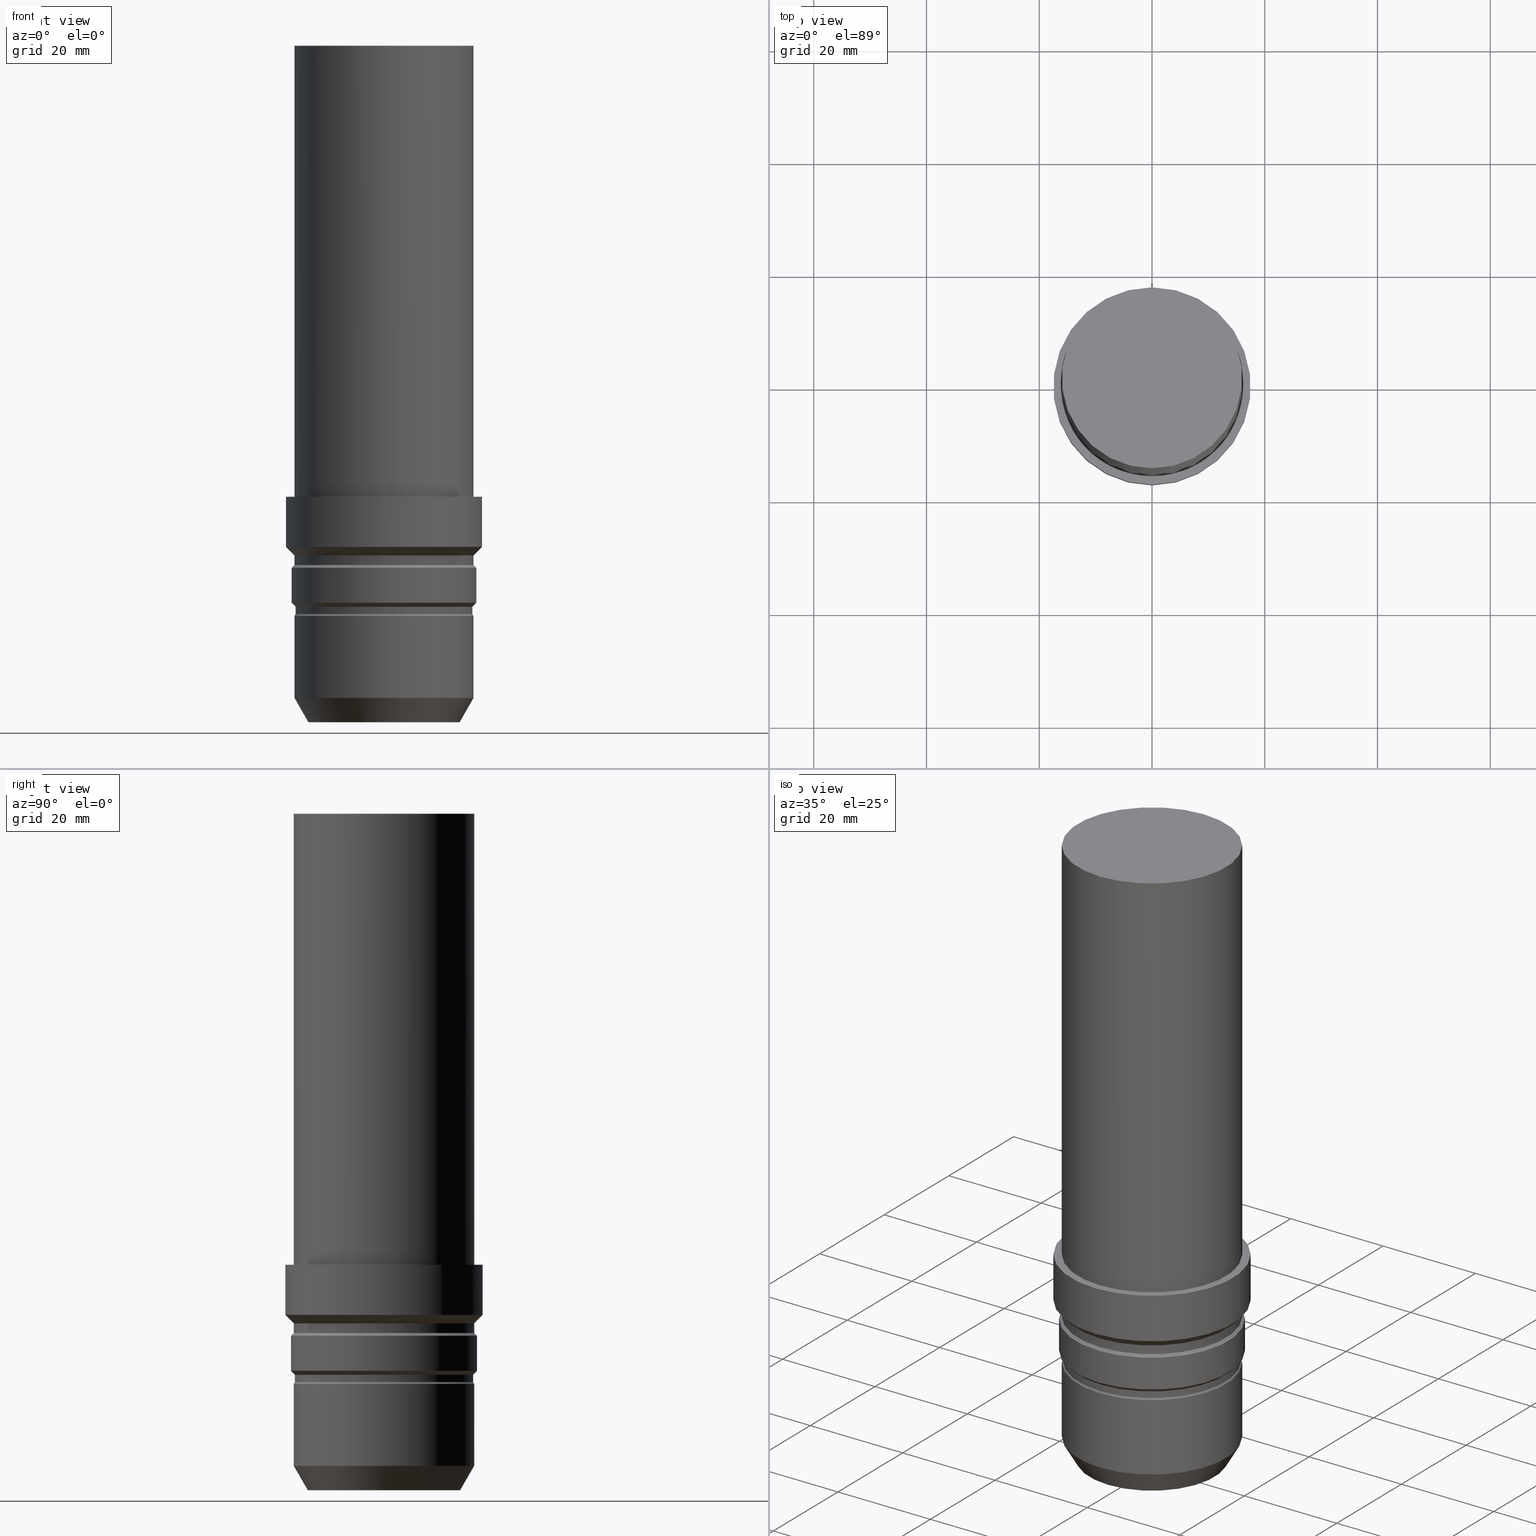
[diagram: canonical four-view strip — front | top / right | iso, engineering-drawing reading convention]
A machine part, canonical four-view strip (front | top / right | iso — engineering-drawing reading convention). The complete STEP part file that produces these views, byte-faithful:
ISO-10303-21;
HEADER;
FILE_DESCRIPTION((''),'1');
FILE_NAME('U:/Translate/00_BIG-HP\X2\FF71FF6FFF8CFF9F\X0\2013/\X2\30C030A630F330ED30FC30C930C730FC30BF\X0\/Vol9\X2\4EE5964D63B28F094E885B9A\X0\/STEP_\X2\FF82FF70FF98FF9DFF78FF9E7DE8\X0\Vol9-1\X2\4EE5964D63B28F094E885B9A\X0\/ST32-HMC12J-120.stp','2014-12-22T03:52:39',(''),(''),'Spatial Interop R21 SP3','Kubotek KeyCreator 2011 V10.0.2 (22737)',' ');
FILE_SCHEMA(('automotive_design'));
ENDSEC;
DATA;
#1=MECHANICAL_DESIGN_GEOMETRIC_PRESENTATION_REPRESENTATION(' ',(#10,#11,#12,#13,#14,#15,#16,#17,#18,#19,#20,#21,#22,#23,#24,#25,#26,#27,#28,#29,#30,#31,#32,#33,#34,#35,#36,#37),#6);
#2=PRODUCT_DEFINITION_CONTEXT('',#38,'design');
#3=APPLICATION_PROTOCOL_DEFINITION('INTERNATIONAL STANDARD','automotive_design',1994,#38);
#4=PRODUCT_CATEGORY_RELATIONSHIP('NONE','NONE',#39,#40);
#5=SHAPE_DEFINITION_REPRESENTATION(#41,#42);
#6= (GEOMETRIC_REPRESENTATION_CONTEXT(3)GLOBAL_UNCERTAINTY_ASSIGNED_CONTEXT((#45))GLOBAL_UNIT_ASSIGNED_CONTEXT((#47,#48,#49))REPRESENTATION_CONTEXT('NONE','WORKSPACE'));
#10=STYLED_ITEM('',(#51),#52);
#11=STYLED_ITEM('',(#53,#54),#55);
#12=STYLED_ITEM('',(#56),#57);
#13=STYLED_ITEM('',(#58,#59),#60);
#14=STYLED_ITEM('',(#61,#62),#63);
#15=STYLED_ITEM('',(#64),#65);
#16=STYLED_ITEM('',(#66,#67),#68);
#17=STYLED_ITEM('',(#69,#70),#71);
#18=STYLED_ITEM('',(#72,#73),#74);
#19=STYLED_ITEM('',(#75),#76);
#20=STYLED_ITEM('',(#77),#78);
#21=STYLED_ITEM('',(#79),#80);
#22=STYLED_ITEM('',(#81),#82);
#23=STYLED_ITEM('',(#83,#84),#85);
#24=STYLED_ITEM('',(#86),#87);
#25=STYLED_ITEM('',(#88,#89),#90);
#26=STYLED_ITEM('',(#91),#92);
#27=STYLED_ITEM('',(#93,#94),#95);
#28=STYLED_ITEM('',(#96,#97),#98);
#29=STYLED_ITEM('',(#99),#100);
#30=STYLED_ITEM('',(#101,#102),#103);
#31=STYLED_ITEM('',(#104,#105),#106);
#32=STYLED_ITEM('',(#107,#108),#109);
#33=STYLED_ITEM('',(#110),#111);
#34=STYLED_ITEM('',(#112,#113),#114);
#35=STYLED_ITEM('',(#115),#116);
#36=STYLED_ITEM('',(#117),#118);
#37=STYLED_ITEM('',(#119,#120),#121);
#38=APPLICATION_CONTEXT(' ');
#39=PRODUCT_CATEGORY('part','NONE');
#40=PRODUCT_RELATED_PRODUCT_CATEGORY('detail',' ',(#122));
#41=PRODUCT_DEFINITION_SHAPE('NONE','NONE',#123);
#42=ADVANCED_BREP_SHAPE_REPRESENTATION('Unnamed[1]',(#63,#124),#6);
#45=UNCERTAINTY_MEASURE_WITH_UNIT(LENGTH_MEASURE(1.0E-006),#47,'','');
#47= (CONVERSION_BASED_UNIT('MILLIMETRE',#127)LENGTH_UNIT()NAMED_UNIT(#130));
#48= (NAMED_UNIT(#132)PLANE_ANGLE_UNIT()SI_UNIT($,.RADIAN.));
#49= (NAMED_UNIT(#132)SOLID_ANGLE_UNIT()SI_UNIT($,.STERADIAN.));
#51=PRESENTATION_STYLE_ASSIGNMENT((#138));
#52=EDGE_CURVE('Unnamed[1]',#139,#139,#140,.T.);
#53=PRESENTATION_STYLE_ASSIGNMENT((#141));
#54=PRESENTATION_STYLE_ASSIGNMENT((#142));
#55=ADVANCED_FACE('Unnamed[1]',(#143,#144),#145,.T.);
#56=PRESENTATION_STYLE_ASSIGNMENT((#146));
#57=EDGE_CURVE('Unnamed[1]',#147,#147,#148,.T.);
#58=PRESENTATION_STYLE_ASSIGNMENT((#149));
#59=PRESENTATION_STYLE_ASSIGNMENT((#150));
#60=ADVANCED_FACE('Unnamed[1]',(#151,#152),#153,.T.);
#61=PRESENTATION_STYLE_ASSIGNMENT((#154));
#62=PRESENTATION_STYLE_ASSIGNMENT((#155));
#63=MANIFOLD_SOLID_BREP('Unnamed[1]',#156);
#64=PRESENTATION_STYLE_ASSIGNMENT((#157));
#65=EDGE_CURVE('Unnamed[1]',#158,#158,#159,.T.);
#66=PRESENTATION_STYLE_ASSIGNMENT((#160));
#67=PRESENTATION_STYLE_ASSIGNMENT((#161));
#68=ADVANCED_FACE('Unnamed[1]',(#162,#163),#164,.T.);
#69=PRESENTATION_STYLE_ASSIGNMENT((#165));
#70=PRESENTATION_STYLE_ASSIGNMENT((#166));
#71=ADVANCED_FACE('Unnamed[1]',(#167,#168),#169,.T.);
#72=PRESENTATION_STYLE_ASSIGNMENT((#170));
#73=PRESENTATION_STYLE_ASSIGNMENT((#171));
#74=ADVANCED_FACE('Unnamed[1]',(#172,#173),#174,.T.);
#75=PRESENTATION_STYLE_ASSIGNMENT((#175));
#76=EDGE_CURVE('Unnamed[1]',#176,#176,#177,.T.);
#77=PRESENTATION_STYLE_ASSIGNMENT((#178));
#78=EDGE_CURVE('Unnamed[1]',#179,#179,#180,.T.);
#79=PRESENTATION_STYLE_ASSIGNMENT((#181));
#80=EDGE_CURVE('Unnamed[1]',#182,#182,#183,.T.);
#81=PRESENTATION_STYLE_ASSIGNMENT((#184));
#82=EDGE_CURVE('Unnamed[1]',#185,#185,#186,.T.);
#83=PRESENTATION_STYLE_ASSIGNMENT((#187));
#84=PRESENTATION_STYLE_ASSIGNMENT((#188));
#85=ADVANCED_FACE('Unnamed[1]',(#189,#190),#191,.T.);
#86=PRESENTATION_STYLE_ASSIGNMENT((#192));
#87=EDGE_CURVE('Unnamed[1]',#193,#193,#194,.T.);
#88=PRESENTATION_STYLE_ASSIGNMENT((#195));
#89=PRESENTATION_STYLE_ASSIGNMENT((#196));
#90=ADVANCED_FACE('Unnamed[1]',(#197,#198),#199,.T.);
#91=PRESENTATION_STYLE_ASSIGNMENT((#200));
#92=EDGE_CURVE('Unnamed[1]',#201,#201,#202,.T.);
#93=PRESENTATION_STYLE_ASSIGNMENT((#203));
#94=PRESENTATION_STYLE_ASSIGNMENT((#204));
#95=ADVANCED_FACE('Unnamed[1]',(#205,#206),#207,.T.);
#96=PRESENTATION_STYLE_ASSIGNMENT((#208));
#97=PRESENTATION_STYLE_ASSIGNMENT((#209));
#98=ADVANCED_FACE('Unnamed[1]',(#210,#211),#212,.T.);
#99=PRESENTATION_STYLE_ASSIGNMENT((#213));
#100=EDGE_CURVE('Unnamed[1]',#214,#214,#215,.T.);
#101=PRESENTATION_STYLE_ASSIGNMENT((#216));
#102=PRESENTATION_STYLE_ASSIGNMENT((#217));
#103=ADVANCED_FACE('Unnamed[1]',(#218,#219),#220,.T.);
#104=PRESENTATION_STYLE_ASSIGNMENT((#221));
#105=PRESENTATION_STYLE_ASSIGNMENT((#222));
#106=ADVANCED_FACE('Unnamed[1]',(#223,#224),#225,.T.);
#107=PRESENTATION_STYLE_ASSIGNMENT((#226));
#108=PRESENTATION_STYLE_ASSIGNMENT((#227));
#109=ADVANCED_FACE('Unnamed[1]',(#228,#229),#230,.T.);
#110=PRESENTATION_STYLE_ASSIGNMENT((#231));
#111=EDGE_CURVE('Unnamed[1]',#232,#232,#233,.T.);
#112=PRESENTATION_STYLE_ASSIGNMENT((#234));
#113=PRESENTATION_STYLE_ASSIGNMENT((#235));
#114=ADVANCED_FACE('Unnamed[1]',(#236),#237,.T.);
#115=PRESENTATION_STYLE_ASSIGNMENT((#238));
#116=EDGE_CURVE('Unnamed[1]',#239,#239,#240,.T.);
#117=PRESENTATION_STYLE_ASSIGNMENT((#241));
#118=EDGE_CURVE('Unnamed[1]',#242,#242,#243,.T.);
#119=PRESENTATION_STYLE_ASSIGNMENT((#244));
#120=PRESENTATION_STYLE_ASSIGNMENT((#245));
#121=ADVANCED_FACE('Unnamed[1]',(#246),#247,.T.);
#122=PRODUCT('Unnamed[1]','Unnamed[1]','PART-Unnamed[1]-DESC',(#248));
#123=PRODUCT_DEFINITION('NONE','NONE',#249,#2);
#124=AXIS2_PLACEMENT_3D('',#250,#251,#252);
#127=LENGTH_MEASURE_WITH_UNIT(LENGTH_MEASURE(1.0),#253);
#130=DIMENSIONAL_EXPONENTS(1.0,0.0,0.0,0.0,0.0,0.0,0.0);
#132=DIMENSIONAL_EXPONENTS(0.0,0.0,0.0,0.0,0.0,0.0,0.0);
#138=CURVE_STYLE('',#254,POSITIVE_LENGTH_MEASURE(1000.0),#255);
#139=VERTEX_POINT('',#256);
#140=CIRCLE('',#257,15.9999999999999);
#141=SURFACE_STYLE_USAGE(.BOTH.,#258);
#142=CURVE_STYLE('',#259,POSITIVE_LENGTH_MEASURE(1000.0),#260);
#143=FACE_BOUND('',#261,.T.);
#144=FACE_BOUND('',#262,.T.);
#145=CYLINDRICAL_SURFACE('',#263,15.8000000000001);
#146=CURVE_STYLE('',#264,POSITIVE_LENGTH_MEASURE(1000.0),#265);
#147=VERTEX_POINT('',#266);
#148=CIRCLE('',#267,16.0000000000002);
#149=SURFACE_STYLE_USAGE(.BOTH.,#268);
#150=CURVE_STYLE('',#269,POSITIVE_LENGTH_MEASURE(1000.0),#270);
#151=FACE_BOUND('',#271,.T.);
#152=FACE_BOUND('',#272,.T.);
#153=CONICAL_SURFACE('',#273,14.75,0.5235987755983);
#154=SURFACE_STYLE_USAGE(.BOTH.,#274);
#155=CURVE_STYLE('',#275,POSITIVE_LENGTH_MEASURE(1000.0),#276);
#156=CLOSED_SHELL('',(#121,#103,#71,#74,#98,#106,#90,#109,#68,#55,#95,#85,#60,#114));
#157=CURVE_STYLE('',#277,POSITIVE_LENGTH_MEASURE(1000.0),#278);
#158=VERTEX_POINT('',#279);
#159=CIRCLE('',#280,15.8000000000001);
#160=SURFACE_STYLE_USAGE(.BOTH.,#281);
#161=CURVE_STYLE('',#282,POSITIVE_LENGTH_MEASURE(1000.0),#283);
#162=FACE_BOUND('',#284,.T.);
#163=FACE_BOUND('',#285,.T.);
#164=CONICAL_SURFACE('',#286,16.1500000000001,0.785398163397392);
#165=SURFACE_STYLE_USAGE(.BOTH.,#287);
#166=CURVE_STYLE('',#288,POSITIVE_LENGTH_MEASURE(1000.0),#289);
#167=FACE_OUTER_BOUND('',#290,.T.);
#168=FACE_BOUND('',#291,.T.);
#169=PLANE('',#292);
#170=SURFACE_STYLE_USAGE(.BOTH.,#293);
#171=CURVE_STYLE('',#294,POSITIVE_LENGTH_MEASURE(1000.0),#295);
#172=FACE_BOUND('',#296,.T.);
#173=FACE_BOUND('',#297,.T.);
#174=CYLINDRICAL_SURFACE('',#298,17.5000000000001);
#175=CURVE_STYLE('',#299,POSITIVE_LENGTH_MEASURE(1000.0),#300);
#176=VERTEX_POINT('',#301);
#177=CIRCLE('',#302,16.0);
#178=CURVE_STYLE('',#303,POSITIVE_LENGTH_MEASURE(1000.0),#304);
#179=VERTEX_POINT('',#305);
#180=CIRCLE('',#306,16.0000000000002);
#181=CURVE_STYLE('',#307,POSITIVE_LENGTH_MEASURE(1000.0),#308);
#182=VERTEX_POINT('',#309);
#183=CIRCLE('',#310,16.0);
#184=CURVE_STYLE('',#311,POSITIVE_LENGTH_MEASURE(1000.0),#312);
#185=VERTEX_POINT('',#313);
#186=CIRCLE('',#314,16.5000000000002);
#187=SURFACE_STYLE_USAGE(.BOTH.,#315);
#188=CURVE_STYLE('',#316,POSITIVE_LENGTH_MEASURE(1000.0),#317);
#189=FACE_BOUND('',#318,.T.);
#190=FACE_BOUND('',#319,.T.);
#191=CYLINDRICAL_SURFACE('',#320,16.0);
#192=CURVE_STYLE('',#321,POSITIVE_LENGTH_MEASURE(1000.0),#322);
#193=VERTEX_POINT('',#323);
#194=CIRCLE('',#324,16.5000000000001);
#195=SURFACE_STYLE_USAGE(.BOTH.,#325);
#196=CURVE_STYLE('',#326,POSITIVE_LENGTH_MEASURE(1000.0),#327);
#197=FACE_BOUND('',#328,.T.);
#198=FACE_BOUND('',#329,.T.);
#199=CONICAL_SURFACE('',#330,16.2500000000002,0.78539816339747);
#200=CURVE_STYLE('',#331,POSITIVE_LENGTH_MEASURE(1000.0),#332);
#201=VERTEX_POINT('',#333);
#202=CIRCLE('',#334,15.8000000000001);
#203=SURFACE_STYLE_USAGE(.BOTH.,#335);
#204=CURVE_STYLE('',#336,POSITIVE_LENGTH_MEASURE(1000.0),#337);
#205=FACE_BOUND('',#338,.T.);
#206=FACE_BOUND('',#339,.T.);
#207=CONICAL_SURFACE('',#340,15.9,0.523598775598126);
#208=SURFACE_STYLE_USAGE(.BOTH.,#341);
#209=CURVE_STYLE('',#342,POSITIVE_LENGTH_MEASURE(1000.0),#343);
#210=FACE_BOUND('',#344,.T.);
#211=FACE_BOUND('',#345,.T.);
#212=CONICAL_SURFACE('',#346,16.7500000000001,0.785398163397431);
#213=CURVE_STYLE('',#347,POSITIVE_LENGTH_MEASURE(1000.0),#348);
#214=VERTEX_POINT('',#349);
#215=CIRCLE('',#350,17.5000000000001);
#216=SURFACE_STYLE_USAGE(.BOTH.,#351);
#217=CURVE_STYLE('',#352,POSITIVE_LENGTH_MEASURE(1000.0),#353);
#218=FACE_BOUND('',#354,.T.);
#219=FACE_BOUND('',#355,.T.);
#220=CYLINDRICAL_SURFACE('',#356,16.0000000000001);
#221=SURFACE_STYLE_USAGE(.BOTH.,#357);
#222=CURVE_STYLE('',#358,POSITIVE_LENGTH_MEASURE(1000.0),#359);
#223=FACE_BOUND('',#360,.T.);
#224=FACE_BOUND('',#361,.T.);
#225=CYLINDRICAL_SURFACE('',#362,16.0000000000002);
#226=SURFACE_STYLE_USAGE(.BOTH.,#363);
#227=CURVE_STYLE('',#364,POSITIVE_LENGTH_MEASURE(1000.0),#365);
#228=FACE_BOUND('',#366,.T.);
#229=FACE_BOUND('',#367,.T.);
#230=CYLINDRICAL_SURFACE('',#368,16.5000000000001);
#231=CURVE_STYLE('',#369,POSITIVE_LENGTH_MEASURE(1000.0),#370);
#232=VERTEX_POINT('',#371);
#233=CIRCLE('',#372,17.5);
#234=SURFACE_STYLE_USAGE(.BOTH.,#373);
#235=CURVE_STYLE('',#374,POSITIVE_LENGTH_MEASURE(1000.0),#375);
#236=FACE_OUTER_BOUND('',#376,.T.);
#237=PLANE('',#377);
#238=CURVE_STYLE('',#378,POSITIVE_LENGTH_MEASURE(1000.0),#379);
#239=VERTEX_POINT('',#380);
#240=CIRCLE('',#381,16.0000000000002);
#241=CURVE_STYLE('',#382,POSITIVE_LENGTH_MEASURE(1000.0),#383);
#242=VERTEX_POINT('',#384);
#243=CIRCLE('',#385,13.5000000000001);
#244=SURFACE_STYLE_USAGE(.BOTH.,#386);
#245=CURVE_STYLE('',#387,POSITIVE_LENGTH_MEASURE(1000.0),#388);
#246=FACE_OUTER_BOUND('',#389,.T.);
#247=PLANE('',#390);
#248=PRODUCT_CONTEXT('',#38,'mechanical');
#249=PRODUCT_DEFINITION_FORMATION_WITH_SPECIFIED_SOURCE(' ','NONE',#122,.NOT_KNOWN.);
#250=CARTESIAN_POINT('',(0.0,0.0,0.0));
#251=DIRECTION('',(0.0,0.0,1.0));
#252=DIRECTION('',(1.0,0.0,0.0));
#253= (NAMED_UNIT(#130)LENGTH_UNIT()SI_UNIT(.MILLI.,.METRE.));
#254=DRAUGHTING_PRE_DEFINED_CURVE_FONT('continuous');
#255=COLOUR_RGB('',0.0,1.0,0.0);
#256=CARTESIAN_POINT('',(-1.15444942240699E-015,16.0,18.8535898384868));
#257=AXIS2_PLACEMENT_3D('',#392,#393,#394);
#258=SURFACE_SIDE_STYLE('',(#395));
#259=DRAUGHTING_PRE_DEFINED_CURVE_FONT('continuous');
#260=COLOUR_RGB('',0.0,1.0,0.0);
#261=EDGE_LOOP('',(#396));
#262=EDGE_LOOP('',(#397));
#263=AXIS2_PLACEMENT_3D('',#398,#399,#400);
#264=DRAUGHTING_PRE_DEFINED_CURVE_FONT('continuous');
#265=COLOUR_RGB('',0.0,1.0,0.0);
#266=CARTESIAN_POINT('',(-1.70838228481049E-015,16.0000000000002,27.8999999999989));
#267=AXIS2_PLACEMENT_3D('',#401,#402,#403);
#268=SURFACE_SIDE_STYLE('',(#404));
#269=DRAUGHTING_PRE_DEFINED_CURVE_FONT('continuous');
#270=COLOUR_RGB('',0.0,1.0,0.0);
#271=EDGE_LOOP('',(#405));
#272=EDGE_LOOP('',(#406));
#273=AXIS2_PLACEMENT_3D('',#407,#408,#409);
#274=SURFACE_SIDE_STYLE('',(#410));
#275=DRAUGHTING_PRE_DEFINED_CURVE_FONT('continuous');
#276=COLOUR_RGB('',0.0,1.0,0.0);
#277=DRAUGHTING_PRE_DEFINED_CURVE_FONT('continuous');
#278=COLOUR_RGB('',0.0,1.0,0.0);
#279=CARTESIAN_POINT('',(-1.25526296912605E-015,15.8000000000002,20.5000000000002));
#280=AXIS2_PLACEMENT_3D('',#411,#412,#413);
#281=SURFACE_SIDE_STYLE('',(#414));
#282=DRAUGHTING_PRE_DEFINED_CURVE_FONT('continuous');
#283=COLOUR_RGB('',0.0,1.0,0.0);
#284=EDGE_LOOP('',(#415));
#285=EDGE_LOOP('',(#416));
#286=AXIS2_PLACEMENT_3D('',#417,#418,#419);
#287=SURFACE_SIDE_STYLE('',(#420));
#288=DRAUGHTING_PRE_DEFINED_CURVE_FONT('continuous');
#289=COLOUR_RGB('',0.0,1.0,0.0);
#290=EDGE_LOOP('',(#421));
#291=EDGE_LOOP('',(#422));
#292=AXIS2_PLACEMENT_3D('',#423,#424,#425);
#293=SURFACE_SIDE_STYLE('',(#426));
#294=DRAUGHTING_PRE_DEFINED_CURVE_FONT('continuous');
#295=COLOUR_RGB('',0.0,1.0,0.0);
#296=EDGE_LOOP('',(#427));
#297=EDGE_LOOP('',(#428));
#298=AXIS2_PLACEMENT_3D('',#429,#430,#431);
#299=DRAUGHTING_PRE_DEFINED_CURVE_FONT('continuous');
#300=COLOUR_RGB('',0.0,1.0,0.0);
#301=CARTESIAN_POINT('',(-7.34788079488409E-015,16.0000000000002,120.0));
#302=AXIS2_PLACEMENT_3D('',#432,#433,#434);
#303=DRAUGHTING_PRE_DEFINED_CURVE_FONT('continuous');
#304=COLOUR_RGB('',0.0,1.0,0.0);
#305=CARTESIAN_POINT('',(-2.4492935982947E-015,16.0000000000002,39.9999999999998));
#306=AXIS2_PLACEMENT_3D('',#435,#436,#437);
#307=DRAUGHTING_PRE_DEFINED_CURVE_FONT('continuous');
#308=COLOUR_RGB('',0.0,1.0,0.0);
#309=CARTESIAN_POINT('',(-2.65143809681213E-016,16.0,4.33012701892198));
#310=AXIS2_PLACEMENT_3D('',#438,#439,#440);
#311=DRAUGHTING_PRE_DEFINED_CURVE_FONT('continuous');
#312=COLOUR_RGB('',0.0,1.0,0.0);
#313=CARTESIAN_POINT('',(-1.6777661148318E-015,16.5000000000002,27.3999999999989));
#314=AXIS2_PLACEMENT_3D('',#441,#442,#443);
#315=SURFACE_SIDE_STYLE('',(#444));
#316=DRAUGHTING_PRE_DEFINED_CURVE_FONT('continuous');
#317=COLOUR_RGB('',0.0,1.0,0.0);
#318=EDGE_LOOP('',(#445));
#319=EDGE_LOOP('',(#446));
#320=AXIS2_PLACEMENT_3D('',#447,#448,#449);
#321=DRAUGHTING_PRE_DEFINED_CURVE_FONT('continuous');
#322=COLOUR_RGB('',0.0,1.0,0.0);
#323=CARTESIAN_POINT('',(-1.29812560709621E-015,16.5000000000001,21.2000000000002));
#324=AXIS2_PLACEMENT_3D('',#450,#451,#452);
#325=SURFACE_SIDE_STYLE('',(#453));
#326=DRAUGHTING_PRE_DEFINED_CURVE_FONT('continuous');
#327=COLOUR_RGB('',0.0,1.0,0.0);
#328=EDGE_LOOP('',(#454));
#329=EDGE_LOOP('',(#455));
#330=AXIS2_PLACEMENT_3D('',#456,#457,#458);
#331=DRAUGHTING_PRE_DEFINED_CURVE_FONT('continuous');
#332=COLOUR_RGB('',0.0,1.0,0.0);
#333=CARTESIAN_POINT('',(-1.17566092718148E-015,15.8000000000002,19.2000000000004));
#334=AXIS2_PLACEMENT_3D('',#459,#460,#461);
#335=SURFACE_SIDE_STYLE('',(#462));
#336=DRAUGHTING_PRE_DEFINED_CURVE_FONT('continuous');
#337=COLOUR_RGB('',0.0,1.0,0.0);
#338=EDGE_LOOP('',(#463));
#339=EDGE_LOOP('',(#464));
#340=AXIS2_PLACEMENT_3D('',#465,#466,#467);
#341=SURFACE_SIDE_STYLE('',(#468));
#342=DRAUGHTING_PRE_DEFINED_CURVE_FONT('continuous');
#343=COLOUR_RGB('',0.0,1.0,0.0);
#344=EDGE_LOOP('',(#469));
#345=EDGE_LOOP('',(#470));
#346=AXIS2_PLACEMENT_3D('',#471,#472,#473);
#347=DRAUGHTING_PRE_DEFINED_CURVE_FONT('continuous');
#348=COLOUR_RGB('',0.0,1.0,0.0);
#349=CARTESIAN_POINT('',(-2.44929359829465E-015,17.5000000000002,39.9999999999991));
#350=AXIS2_PLACEMENT_3D('',#474,#475,#476);
#351=SURFACE_SIDE_STYLE('',(#477));
#352=DRAUGHTING_PRE_DEFINED_CURVE_FONT('continuous');
#353=COLOUR_RGB('',0.0,1.0,0.0);
#354=EDGE_LOOP('',(#478));
#355=EDGE_LOOP('',(#479));
#356=AXIS2_PLACEMENT_3D('',#480,#481,#482);
#357=SURFACE_SIDE_STYLE('',(#483));
#358=DRAUGHTING_PRE_DEFINED_CURVE_FONT('continuous');
#359=COLOUR_RGB('',0.0,1.0,0.0);
#360=EDGE_LOOP('',(#484));
#361=EDGE_LOOP('',(#485));
#362=AXIS2_PLACEMENT_3D('',#486,#487,#488);
#363=SURFACE_SIDE_STYLE('',(#489));
#364=DRAUGHTING_PRE_DEFINED_CURVE_FONT('continuous');
#365=COLOUR_RGB('',0.0,1.0,0.0);
#366=EDGE_LOOP('',(#490));
#367=EDGE_LOOP('',(#491));
#368=AXIS2_PLACEMENT_3D('',#492,#493,#494);
#369=DRAUGHTING_PRE_DEFINED_CURVE_FONT('continuous');
#370=COLOUR_RGB('',0.0,1.0,0.0);
#371=CARTESIAN_POINT('',(-1.90432577267406E-015,17.5000000000001,31.0999999999989));
#372=AXIS2_PLACEMENT_3D('',#495,#496,#497);
#373=SURFACE_SIDE_STYLE('',(#498));
#374=DRAUGHTING_PRE_DEFINED_CURVE_FONT('continuous');
#375=COLOUR_RGB('',0.0,1.0,0.0);
#376=EDGE_LOOP('',(#499));
#377=AXIS2_PLACEMENT_3D('',#500,#501,#502);
#378=DRAUGHTING_PRE_DEFINED_CURVE_FONT('continuous');
#379=COLOUR_RGB('',0.0,1.0,0.0);
#380=CARTESIAN_POINT('',(-1.81247726273802E-015,16.0000000000002,29.5999999999989));
#381=AXIS2_PLACEMENT_3D('',#503,#504,#505);
#382=DRAUGHTING_PRE_DEFINED_CURVE_FONT('continuous');
#383=COLOUR_RGB('',0.0,1.0,0.0);
#384=CARTESIAN_POINT('',(3.15544362088405E-030,13.5000000000001,-2.8421709430404E-014));
#385=AXIS2_PLACEMENT_3D('',#506,#507,#508);
#386=SURFACE_SIDE_STYLE('',(#509));
#387=DRAUGHTING_PRE_DEFINED_CURVE_FONT('continuous');
#388=COLOUR_RGB('',0.0,1.0,0.0);
#389=EDGE_LOOP('',(#510));
#390=AXIS2_PLACEMENT_3D('',#511,#512,#513);
#392=CARTESIAN_POINT('',(-1.15444942240699E-015,3.5027390540255E-014,18.8535898384868));
#393=DIRECTION('',(6.12323399573676E-017,-1.85786318893773E-015,-1.0));
#394=DIRECTION('',(1.08934157648545E-031,1.0,-1.85786318893773E-015));
#395=SURFACE_STYLE_FILL_AREA(#514);
#396=ORIENTED_EDGE('',*,*,#92,.F.);
#397=ORIENTED_EDGE('',*,*,#65,.T.);
#398=CARTESIAN_POINT('',(-1.21546194815377E-015,3.68785843004146E-014,19.8500000000003));
#399=DIRECTION('',(6.12323399573677E-017,-1.85786318893773E-015,-1.0));
#400=DIRECTION('',(1.08934157648545E-031,1.0,-1.85786318893773E-015));
#401=CARTESIAN_POINT('',(-1.70838228481049E-015,5.18343829713607E-014,27.8999999999989));
#402=DIRECTION('',(6.12323399573677E-017,-1.85786318893773E-015,-1.0));
#403=DIRECTION('',(1.08934157648545E-031,1.0,-1.85786318893773E-015));
#404=SURFACE_STYLE_FILL_AREA(#515);
#405=ORIENTED_EDGE('',*,*,#118,.F.);
#406=ORIENTED_EDGE('',*,*,#80,.T.);
#407=CARTESIAN_POINT('',(-1.32571904840608E-016,4.02239179593993E-015,2.16506350946101));
#408=DIRECTION('',(-6.12323399573677E-017,1.85786318893773E-015,1.0));
#409=DIRECTION('',(1.08934157648545E-031,1.0,-1.85786318893773E-015));
#410=SURFACE_STYLE_FILL_AREA(#516);
#411=CARTESIAN_POINT('',(-1.25526296912605E-015,3.80861953732239E-014,20.5000000000002));
#412=DIRECTION('',(6.12323399573677E-017,-1.85786318893773E-015,-1.0));
#413=DIRECTION('',(1.08934157648545E-031,1.0,-1.85786318893773E-015));
#414=SURFACE_STYLE_FILL_AREA(#517);
#415=ORIENTED_EDGE('',*,*,#65,.F.);
#416=ORIENTED_EDGE('',*,*,#87,.T.);
#417=CARTESIAN_POINT('',(-1.27669428811113E-015,3.87364474893522E-014,20.8500000000003));
#418=DIRECTION('',(-6.12323399573677E-017,1.85786318893773E-015,1.0));
#419=DIRECTION('',(1.08934157648545E-031,1.0,-1.85786318893773E-015));
#420=SURFACE_STYLE_FILL_AREA(#518);
#421=ORIENTED_EDGE('',*,*,#100,.F.);
#422=ORIENTED_EDGE('',*,*,#78,.T.);
#423=CARTESIAN_POINT('',(-2.44929359829467E-015,16.7500000000002,39.9999999999995));
#424=DIRECTION('',(-6.12323399573677E-017,4.83046595636963E-013,1.0));
#425=DIRECTION('',(-2.95732462065608E-029,-1.0,4.83046595636963E-013));
#426=SURFACE_STYLE_FILL_AREA(#519);
#427=ORIENTED_EDGE('',*,*,#100,.T.);
#428=ORIENTED_EDGE('',*,*,#111,.F.);
#429=CARTESIAN_POINT('',(-2.03903692058028E-015,6.18668441916246E-014,33.299999999999));
#430=DIRECTION('',(6.12323399573676E-017,-1.85786318893773E-015,-1.0));
#431=DIRECTION('',(1.08934157648545E-031,1.0,-1.85786318893773E-015));
#432=CARTESIAN_POINT('',(-7.34788079488409E-015,2.22943582672527E-013,120.0));
#433=DIRECTION('',(6.12323399573677E-017,-1.85786318893773E-015,-1.0));
#434=DIRECTION('',(1.08934157648545E-031,1.0,-1.85786318893773E-015));
#435=CARTESIAN_POINT('',(-2.4492935982947E-015,7.4314527557509E-014,39.9999999999999));
#436=DIRECTION('',(6.12323399573677E-017,-1.85786318893773E-015,-1.0));
#437=DIRECTION('',(1.08934157648545E-031,1.0,-1.85786318893773E-015));
#438=CARTESIAN_POINT('',(-2.65143809681215E-016,8.04478359187988E-015,4.33012701892201));
#439=DIRECTION('',(6.12323399573677E-017,-1.85786318893773E-015,-1.0));
#440=DIRECTION('',(1.08934157648545E-031,1.0,-1.85786318893773E-015));
#441=CARTESIAN_POINT('',(-1.67776611483181E-015,5.09054513768918E-014,27.3999999999989));
#442=DIRECTION('',(6.12323399573677E-017,-1.85786318893773E-015,-1.0));
#443=DIRECTION('',(1.08934157648545E-031,1.0,-1.85786318893773E-015));
#444=SURFACE_STYLE_FILL_AREA(#520);
#445=ORIENTED_EDGE('',*,*,#80,.F.);
#446=ORIENTED_EDGE('',*,*,#52,.T.);
#447=CARTESIAN_POINT('',(-7.09796616044104E-016,2.15360870660674E-014,11.5918584287044));
#448=DIRECTION('',(6.12323399573677E-017,-1.85786318893773E-015,-1.0));
#449=DIRECTION('',(1.08934157648545E-031,1.0,-1.85786318893773E-015));
#450=CARTESIAN_POINT('',(-1.29812560709621E-015,3.93866996054804E-014,21.2000000000003));
#451=DIRECTION('',(6.12323399573677E-017,-1.85786318893773E-015,-1.0));
#452=DIRECTION('',(1.08934157648545E-031,1.0,-1.85786318893773E-015));
#453=SURFACE_STYLE_FILL_AREA(#521);
#454=ORIENTED_EDGE('',*,*,#82,.F.);
#455=ORIENTED_EDGE('',*,*,#57,.T.);
#456=CARTESIAN_POINT('',(-1.69307419982115E-015,5.13699171741262E-014,27.6499999999989));
#457=DIRECTION('',(6.12323399573677E-017,-1.85786318893773E-015,-1.0));
#458=DIRECTION('',(1.08934157648545E-031,1.0,-1.85786318893773E-015));
#459=CARTESIAN_POINT('',(-1.17566092718148E-015,3.56709732276051E-014,19.2000000000004));
#460=DIRECTION('',(6.12323399573677E-017,-1.85786318893773E-015,-1.0));
#461=DIRECTION('',(1.08934157648545E-031,1.0,-1.85786318893773E-015));
#462=SURFACE_STYLE_FILL_AREA(#522);
#463=ORIENTED_EDGE('',*,*,#52,.F.);
#464=ORIENTED_EDGE('',*,*,#92,.T.);
#465=CARTESIAN_POINT('',(-1.16505517479424E-015,3.53491818839301E-014,19.0267949192436));
#466=DIRECTION('',(6.12323399573677E-017,-1.85786318893773E-015,-1.0));
#467=DIRECTION('',(1.08934157648545E-031,1.0,-1.85786318893773E-015));
#468=SURFACE_STYLE_FILL_AREA(#523);
#469=ORIENTED_EDGE('',*,*,#116,.F.);
#470=ORIENTED_EDGE('',*,*,#111,.T.);
#471=CARTESIAN_POINT('',(-1.85840151770604E-015,5.63861477842581E-014,30.3499999999989));
#472=DIRECTION('',(-6.12323399573677E-017,1.85786318893773E-015,1.0));
#473=DIRECTION('',(1.08934157648545E-031,1.0,-1.85786318893773E-015));
#474=CARTESIAN_POINT('',(-2.44929359829465E-015,7.43145275575076E-014,39.9999999999992));
#475=DIRECTION('',(6.12323399573676E-017,-1.85786318893773E-015,-1.0));
#476=DIRECTION('',(1.08934157648545E-031,1.0,-1.85786318893773E-015));
#477=SURFACE_STYLE_FILL_AREA(#524);
#478=ORIENTED_EDGE('',*,*,#78,.F.);
#479=ORIENTED_EDGE('',*,*,#76,.T.);
#480=CARTESIAN_POINT('',(-4.89858719658939E-015,1.48629055115018E-013,79.9999999999997));
#481=DIRECTION('',(6.12323399573677E-017,-1.85786318893773E-015,-1.0));
#482=DIRECTION('',(1.08934157648545E-031,1.0,-1.85786318893773E-015));
#483=SURFACE_STYLE_FILL_AREA(#525);
#484=ORIENTED_EDGE('',*,*,#57,.F.);
#485=ORIENTED_EDGE('',*,*,#116,.T.);
#486=CARTESIAN_POINT('',(-1.76042977377425E-015,5.34135666819578E-014,28.7499999999989));
#487=DIRECTION('',(6.12323399573677E-017,-1.85786318893773E-015,-1.0));
#488=DIRECTION('',(1.08934157648545E-031,1.0,-1.85786318893773E-015));
#489=SURFACE_STYLE_FILL_AREA(#526);
#490=ORIENTED_EDGE('',*,*,#87,.F.);
#491=ORIENTED_EDGE('',*,*,#82,.T.);
#492=CARTESIAN_POINT('',(-1.48794586096401E-015,4.51460754911861E-014,24.2999999999996));
#493=DIRECTION('',(6.12323399573677E-017,-1.85786318893773E-015,-1.0));
#494=DIRECTION('',(1.08934157648545E-031,1.0,-1.85786318893773E-015));
#495=CARTESIAN_POINT('',(-1.90432577267407E-015,5.77795451759614E-014,31.0999999999989));
#496=DIRECTION('',(6.12323399573676E-017,-1.85786318893773E-015,-1.0));
#497=DIRECTION('',(1.08934157648545E-031,1.0,-1.85786318893773E-015));
#498=SURFACE_STYLE_FILL_AREA(#527);
#499=ORIENTED_EDGE('',*,*,#118,.T.);
#500=CARTESIAN_POINT('',(4.25984888819346E-029,6.75000000000003,-6.82121026329696E-013));
#501=DIRECTION('',(6.12323399573677E-017,9.69668079242539E-014,-1.0));
#502=DIRECTION('',(-5.94233170012945E-030,1.0,9.69668079242539E-014));
#503=CARTESIAN_POINT('',(-1.81247726273802E-015,5.49927503925549E-014,29.599999999999));
#504=DIRECTION('',(6.12323399573677E-017,-1.85786318893773E-015,-1.0));
#505=DIRECTION('',(1.08934157648545E-031,1.0,-1.85786318893773E-015));
#506=CARTESIAN_POINT('',(0.0,0.0,0.0));
#507=DIRECTION('',(6.12323399573677E-017,-1.85786318893773E-015,-1.0));
#508=DIRECTION('',(1.08934157648545E-031,1.0,-1.85786318893773E-015));
#509=SURFACE_STYLE_FILL_AREA(#528);
#510=ORIENTED_EDGE('',*,*,#76,.F.);
#511=CARTESIAN_POINT('',(-7.34788079488409E-015,8.00000000000021,120.0));
#512=DIRECTION('',(-6.12323399573677E-017,1.81018652890104E-015,1.0));
#513=DIRECTION('',(-1.06014804193147E-031,-1.0,1.81018652890104E-015));
#514=FILL_AREA_STYLE('',(#529));
#515=FILL_AREA_STYLE('',(#530));
#516=FILL_AREA_STYLE('',(#531));
#517=FILL_AREA_STYLE('',(#532));
#518=FILL_AREA_STYLE('',(#533));
#519=FILL_AREA_STYLE('',(#534));
#520=FILL_AREA_STYLE('',(#535));
#521=FILL_AREA_STYLE('',(#536));
#522=FILL_AREA_STYLE('',(#537));
#523=FILL_AREA_STYLE('',(#538));
#524=FILL_AREA_STYLE('',(#539));
#525=FILL_AREA_STYLE('',(#540));
#526=FILL_AREA_STYLE('',(#541));
#527=FILL_AREA_STYLE('',(#542));
#528=FILL_AREA_STYLE('',(#543));
#529=FILL_AREA_STYLE_COLOUR('',#544);
#530=FILL_AREA_STYLE_COLOUR('',#545);
#531=FILL_AREA_STYLE_COLOUR('',#546);
#532=FILL_AREA_STYLE_COLOUR('',#547);
#533=FILL_AREA_STYLE_COLOUR('',#548);
#534=FILL_AREA_STYLE_COLOUR('',#549);
#535=FILL_AREA_STYLE_COLOUR('',#550);
#536=FILL_AREA_STYLE_COLOUR('',#551);
#537=FILL_AREA_STYLE_COLOUR('',#552);
#538=FILL_AREA_STYLE_COLOUR('',#553);
#539=FILL_AREA_STYLE_COLOUR('',#554);
#540=FILL_AREA_STYLE_COLOUR('',#555);
#541=FILL_AREA_STYLE_COLOUR('',#556);
#542=FILL_AREA_STYLE_COLOUR('',#557);
#543=FILL_AREA_STYLE_COLOUR('',#558);
#544=COLOUR_RGB('',0.0,1.0,0.0);
#545=COLOUR_RGB('',0.0,1.0,0.0);
#546=COLOUR_RGB('',0.0,1.0,0.0);
#547=COLOUR_RGB('',0.0,1.0,0.0);
#548=COLOUR_RGB('',0.0,1.0,0.0);
#549=COLOUR_RGB('',0.0,1.0,0.0);
#550=COLOUR_RGB('',0.0,1.0,0.0);
#551=COLOUR_RGB('',0.0,1.0,0.0);
#552=COLOUR_RGB('',0.0,1.0,0.0);
#553=COLOUR_RGB('',0.0,1.0,0.0);
#554=COLOUR_RGB('',0.0,1.0,0.0);
#555=COLOUR_RGB('',0.0,1.0,0.0);
#556=COLOUR_RGB('',0.0,1.0,0.0);
#557=COLOUR_RGB('',0.0,1.0,0.0);
#558=COLOUR_RGB('',0.0,1.0,0.0);
ENDSEC;
END-ISO-10303-21;
